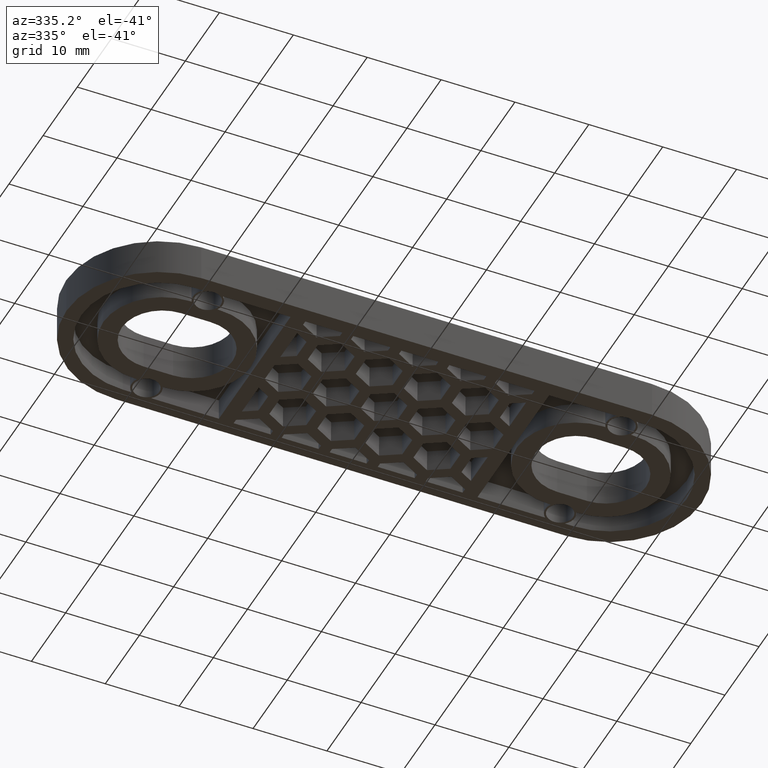
[diagram: clean part render]
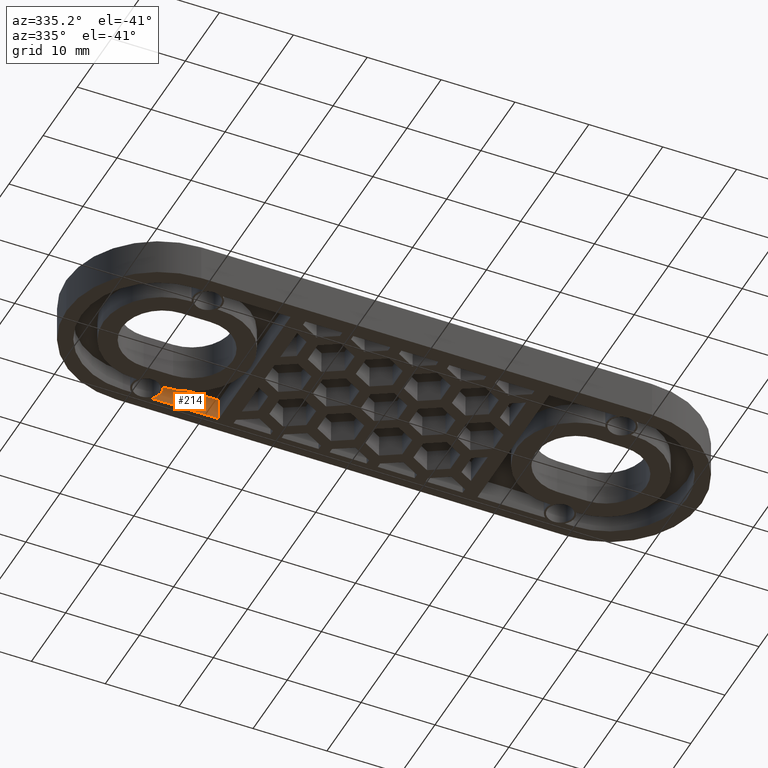
[diagram: same view with one face highlighted and labeled with its STEP entity id]
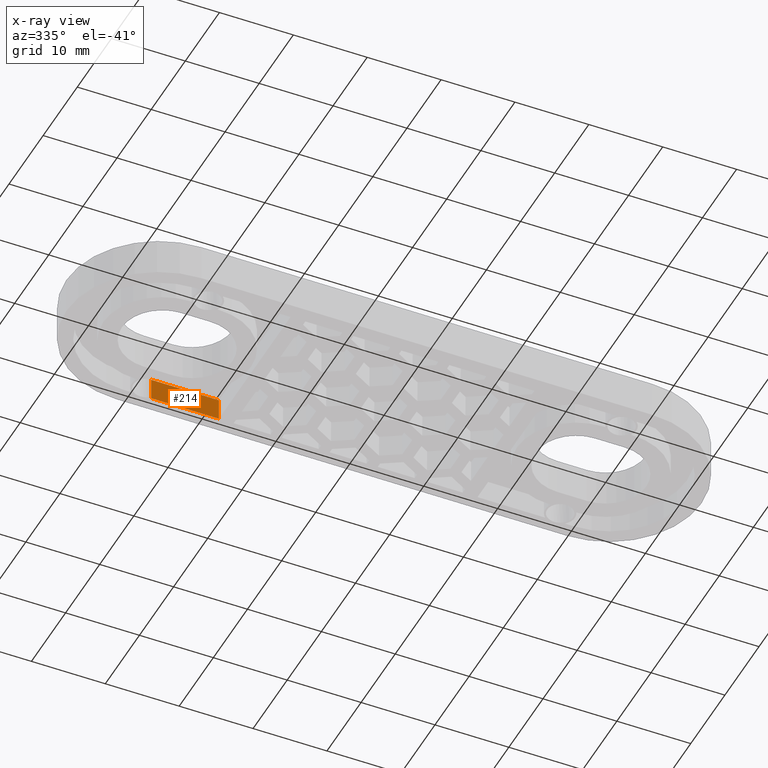
[diagram: x-ray of the same camera — body ghosted, the highlighted face saturated]
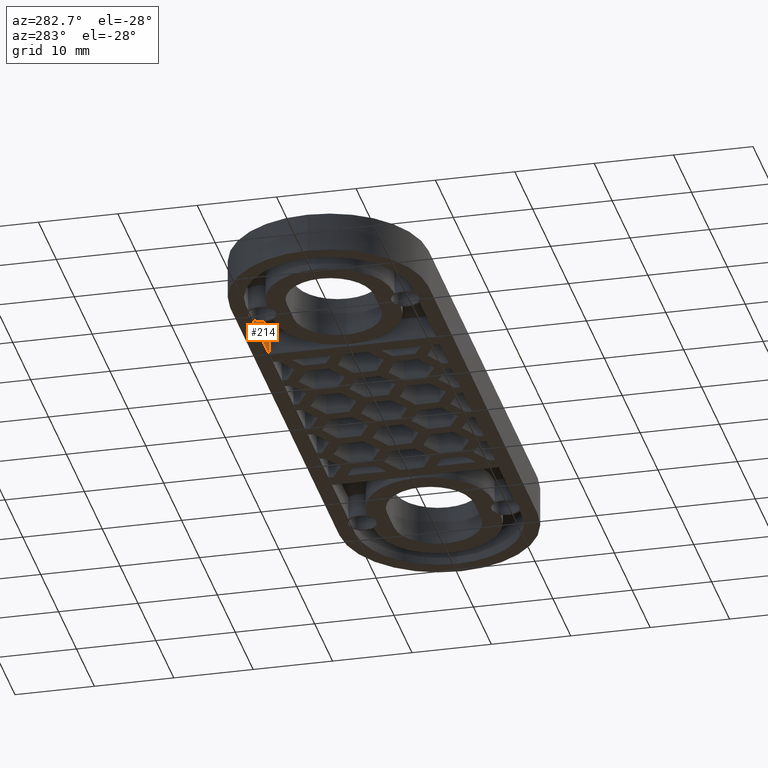
[diagram: same view with one face highlighted and labeled with its STEP entity id]
A machine part, auxiliary view. The second image highlights one B-rep face of the part: STEP entity #214.
The next image is the same camera in x-ray: the body ghosted, the highlighted face saturated — about 0% of this face is hidden behind the body in this view.
A second angle (auxiliary view) of the same face is appended — the face is thin or edge-on in the first view.
In plain terms, the highlighted planar face has unit normal (0, -1, 0).
Its self-contained STEP definition (entity closure, byte-faithful):
#214 = ADVANCED_FACE( '', ( #680 ), #681, .T. );
#680 = FACE_OUTER_BOUND( '', #1288, .T. );
#681 = PLANE( '', #1289 );
#1288 = EDGE_LOOP( '', ( #2803, #2804, #2805, #2806 ) );
#1289 = AXIS2_PLACEMENT_3D( '', #2807, #2808, #2809 );
#2803 = ORIENTED_EDGE( '', *, *, #4354, .F. );
#2804 = ORIENTED_EDGE( '', *, *, #3897, .F. );
#2805 = ORIENTED_EDGE( '', *, *, #4355, .F. );
#2806 = ORIENTED_EDGE( '', *, *, #4340, .F. );
#2807 = CARTESIAN_POINT( '', ( -30.5000000000000, 10.5000000000000, -2.99999999979699 ) );
#2808 = DIRECTION( '', ( 0.000000000000000, -1.00000000000000, 6.12303176911189E-017 ) );
#2809 = DIRECTION( '', ( -1.00000000000000, 0.000000000000000, 0.000000000000000 ) );
#3897 = EDGE_CURVE( '', #4691, #4692, #4693, .T. );
#4340 = EDGE_CURVE( '', #5447, #5450, #5451, .T. );
#4354 = EDGE_CURVE( '', #4692, #5447, #5470, .T. );
#4355 = EDGE_CURVE( '', #5450, #4691, #5471, .T. );
#4691 = VERTEX_POINT( '', #5915 );
#4692 = VERTEX_POINT( '', #5916 );
#4693 = LINE( '', #5917, #5918 );
#5447 = VERTEX_POINT( '', #7086 );
#5450 = VERTEX_POINT( '', #7089 );
#5451 = LINE( '', #7090, #7091 );
#5470 = LINE( '', #7121, #7122 );
#5471 = LINE( '', #7123, #7124 );
#5915 = CARTESIAN_POINT( '', ( -17.5000000000000, 10.5000000000000, -7.58181223966398E-015 ) );
#5916 = CARTESIAN_POINT( '', ( -26.6771243444677, 10.5000000000000, -7.58181223966398E-015 ) );
#5917 = CARTESIAN_POINT( '', ( 30.5000000000000, 10.5000000000000, -7.58181223966398E-015 ) );
#5918 = VECTOR( '', #7619, 1000.00000000000 );
#7086 = CARTESIAN_POINT( '', ( -26.6771243444677, 10.5000000000000, 3.00000000000000 ) );
#7089 = CARTESIAN_POINT( '', ( -17.5000000000000, 10.5000000000000, 3.00000000000000 ) );
#7090 = CARTESIAN_POINT( '', ( -30.5000000000000, 10.5000000000000, 3.00000000000000 ) );
#7091 = VECTOR( '', #8118, 1000.00000000000 );
#7121 = CARTESIAN_POINT( '', ( -26.6771243444677, 10.5000000000000, 3.00000000000000 ) );
#7122 = VECTOR( '', #8136, 1000.00000000000 );
#7123 = CARTESIAN_POINT( '', ( -17.5000000000000, 10.5000000000000, 3.00000000000000 ) );
#7124 = VECTOR( '', #8137, 1000.00000000000 );
#7619 = DIRECTION( '', ( -1.00000000000000, 0.000000000000000, 0.000000000000000 ) );
#8118 = DIRECTION( '', ( 1.00000000000000, 0.000000000000000, 0.000000000000000 ) );
#8136 = DIRECTION( '', ( 0.000000000000000, 6.12303176911189E-017, 1.00000000000000 ) );
#8137 = DIRECTION( '', ( 0.000000000000000, -6.12303176911189E-017, -1.00000000000000 ) );